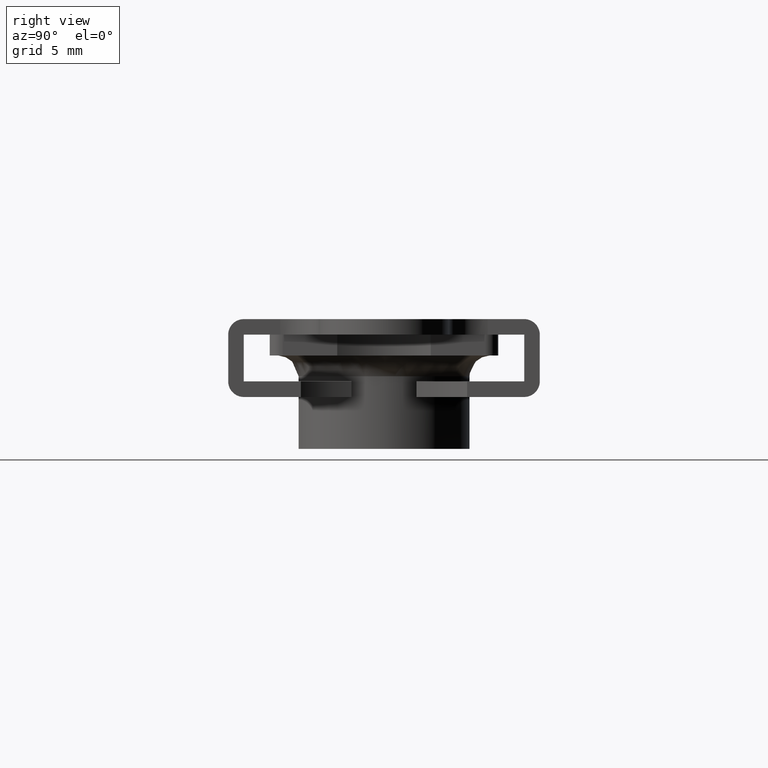
[diagram: clean part render]
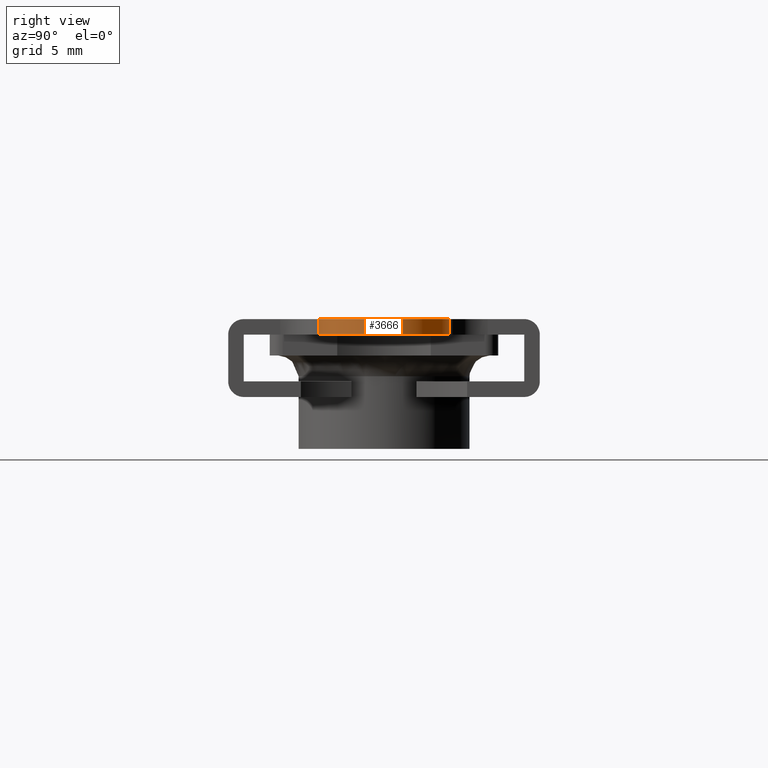
[diagram: same view with one face highlighted and labeled with its STEP entity id]
A machine part, right view. The second image highlights one B-rep face of the part: STEP entity #3666.
In plain terms, the highlighted face is a freeform B-spline surface patch.
Its self-contained STEP definition (entity closure, byte-faithful):
#3598=CARTESIAN_POINT('',(9.934557629230314,2.499143312438892,-0.615000000000046));
#3599=CARTESIAN_POINT('',(9.934557629230314,2.499143312438892,0.015375000000001));
#3600=CARTESIAN_POINT('',(12.568105182107248,2.568105182107256,-0.615000000000046));
#3601=CARTESIAN_POINT('',(12.568105182107248,2.568105182107256,0.015375000000001));
#3602=CARTESIAN_POINT('',(12.499143312438891,-0.065442370769679,-0.615000000000046));
#3603=CARTESIAN_POINT('',(12.499143312438891,-0.065442370769679,0.015375000000001));
#3604=CARTESIAN_POINT('',(12.430181442770536,-2.698989923646616,-0.615000000000046));
#3605=CARTESIAN_POINT('',(12.430181442770536,-2.698989923646616,0.015375000000001));
#3606=CARTESIAN_POINT('',(9.803852260680390,-2.492293334332819,-0.615000000000046));
#3607=CARTESIAN_POINT('',(9.803852260680390,-2.492293334332819,0.015375000000001));
#3615=(BOUNDED_SURFACE()B_SPLINE_SURFACE(1,2,((#3598,#3600,#3602,#3604,#3606),(#3599,#3601,#3603,#3605,#3607)),.UNSPECIFIED.,.F.,.F.,.U.)B_SPLINE_SURFACE_WITH_KNOTS((2,2),(3,2,3),(0.0,1.0),(0.0,4.296339059668361,8.592678119336721),.UNSPECIFIED.)GEOMETRIC_REPRESENTATION_ITEM()RATIONAL_B_SPLINE_SURFACE(((1.0,0.688354575693754,1.0,0.688354575693754,1.0),(1.0,0.688354575693754,1.0,0.688354575693754,1.0)))REPRESENTATION_ITEM('')SURFACE());
#3616=CARTESIAN_POINT('',(10.0,-2.500000000000100,0.0));
#3617=VERTEX_POINT('',#3616);
#3618=CARTESIAN_POINT('',(10.0,2.500000000000000,0.0));
#3619=VERTEX_POINT('',#3618);
#3620=CARTESIAN_POINT('',(10.0,-2.500000000000100,0.0));
#3621=CARTESIAN_POINT('',(12.500000000000000,-2.500000000000000,0.0));
#3622=CARTESIAN_POINT('',(12.500000000000000,0.0,0.0));
#3623=CARTESIAN_POINT('',(12.500000000000000,2.500000000000000,0.0));
#3624=CARTESIAN_POINT('',(10.0,2.500000000000000,0.0));
#3632=(BOUNDED_CURVE()B_SPLINE_CURVE(2,(#3620,#3621,#3622,#3623,#3624),.UNSPECIFIED.,.F.,.U.)B_SPLINE_CURVE_WITH_KNOTS((3,2,3),(0.0,0.500000000000000,1.0),.UNSPECIFIED.)CURVE()GEOMETRIC_REPRESENTATION_ITEM()RATIONAL_B_SPLINE_CURVE((1.0,0.707106781186548,1.0,0.707106781186548,1.0))REPRESENTATION_ITEM(''));
#3633=EDGE_CURVE('',#3617,#3619,#3632,.T.);
#3634=ORIENTED_EDGE('',*,*,#3633,.F.);
#3635=CARTESIAN_POINT('',(10.0,-2.500000000000100,-0.600000000000045));
#3636=VERTEX_POINT('',#3635);
#3637=CARTESIAN_POINT('',(10.0,-2.500000000000100,-0.600000000000045));
#3638=CARTESIAN_POINT('',(10.0,-2.500000000000100,0.0));
#3639=QUASI_UNIFORM_CURVE('',1,(#3637,#3638),.UNSPECIFIED.,.F.,.U.);
#3640=EDGE_CURVE('',#3636,#3617,#3639,.T.);
#3641=ORIENTED_EDGE('',*,*,#3640,.F.);
#3642=CARTESIAN_POINT('',(10.0,2.500000000000000,-0.600000000000045));
#3643=VERTEX_POINT('',#3642);
#3644=CARTESIAN_POINT('',(10.0,-2.500000000000100,-0.600000000000045));
#3645=CARTESIAN_POINT('',(12.500000000000000,-2.500000000000000,-0.600000000000045));
#3646=CARTESIAN_POINT('',(12.500000000000000,0.0,-0.600000000000045));
#3647=CARTESIAN_POINT('',(12.500000000000000,2.500000000000000,-0.600000000000045));
#3648=CARTESIAN_POINT('',(10.0,2.500000000000000,-0.600000000000045));
#3656=(BOUNDED_CURVE()B_SPLINE_CURVE(2,(#3644,#3645,#3646,#3647,#3648),.UNSPECIFIED.,.F.,.U.)B_SPLINE_CURVE_WITH_KNOTS((3,2,3),(0.0,0.500000000000000,1.0),.UNSPECIFIED.)CURVE()GEOMETRIC_REPRESENTATION_ITEM()RATIONAL_B_SPLINE_CURVE((1.0,0.707106781186548,1.0,0.707106781186548,1.0))REPRESENTATION_ITEM(''));
#3657=EDGE_CURVE('',#3636,#3643,#3656,.T.);
#3658=ORIENTED_EDGE('',*,*,#3657,.T.);
#3659=CARTESIAN_POINT('',(10.0,2.500000000000000,-0.600000000000045));
#3660=CARTESIAN_POINT('',(10.0,2.500000000000000,0.0));
#3661=QUASI_UNIFORM_CURVE('',1,(#3659,#3660),.UNSPECIFIED.,.F.,.U.);
#3662=EDGE_CURVE('',#3643,#3619,#3661,.T.);
#3663=ORIENTED_EDGE('',*,*,#3662,.T.);
#3664=EDGE_LOOP('',(#3634,#3641,#3658,#3663));
#3665=FACE_OUTER_BOUND('',#3664,.T.);
#3666=ADVANCED_FACE('',(#3665),#3615,.T.);